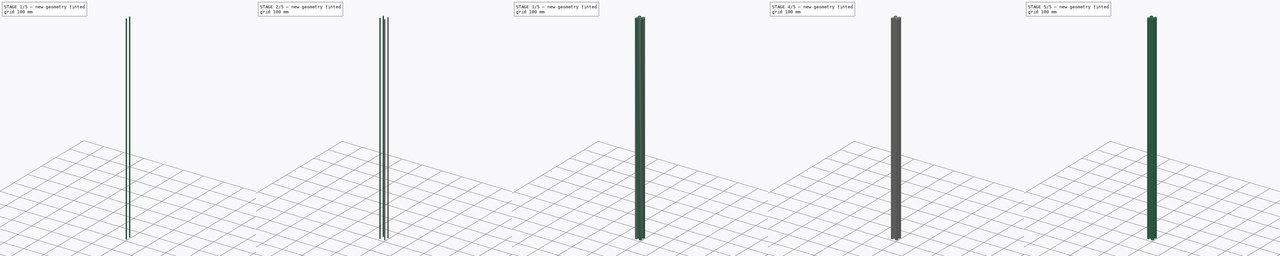
[diagram: build sequence overview — one tinted view per stage of 5, left to right]
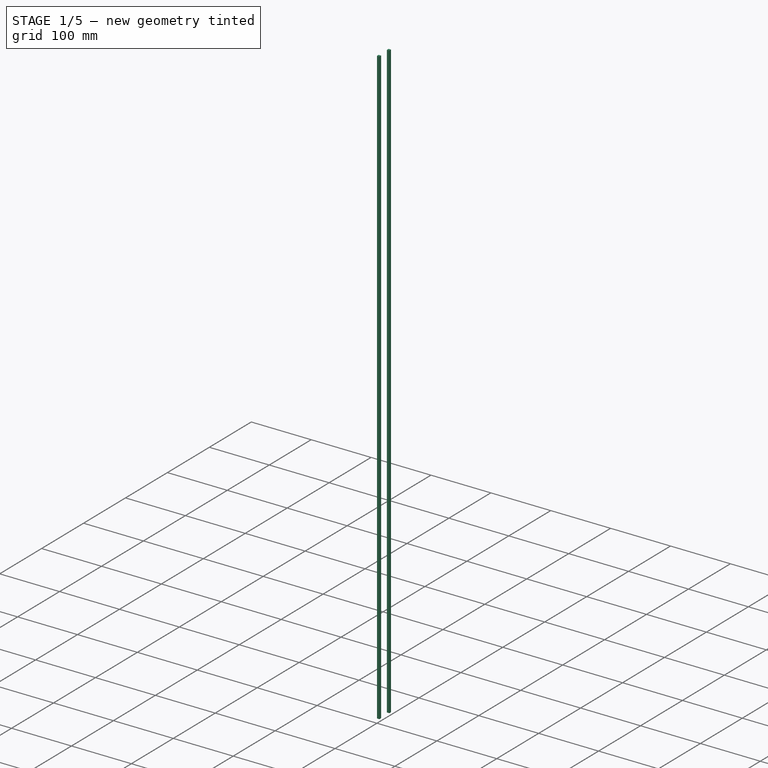
[diagram: stage 1 of 5 — iso view after this stage's code; geometry added in this stage tinted green]
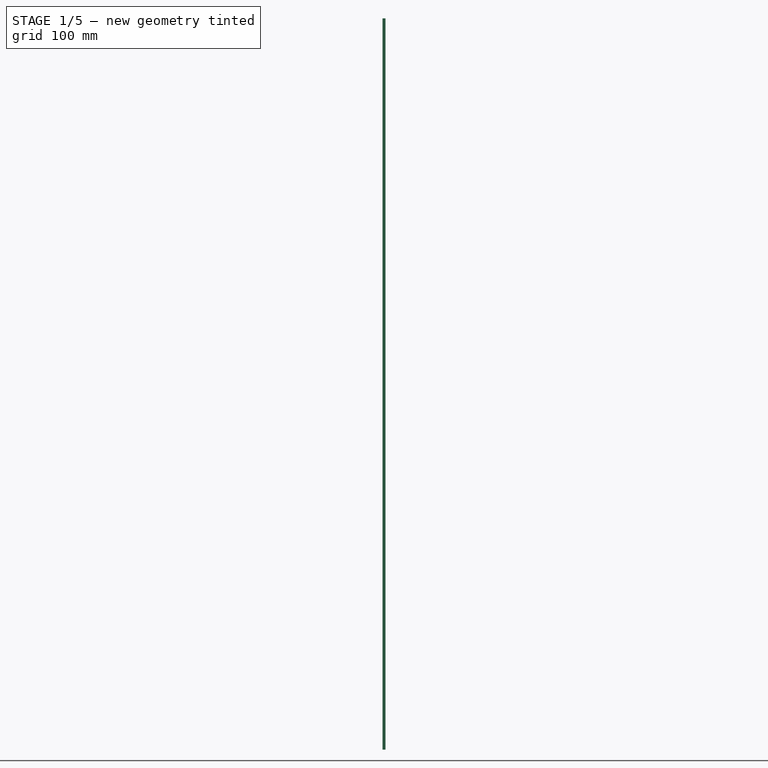
[diagram: stage 1 of 5 — front view after this stage's code; geometry added in this stage tinted green]
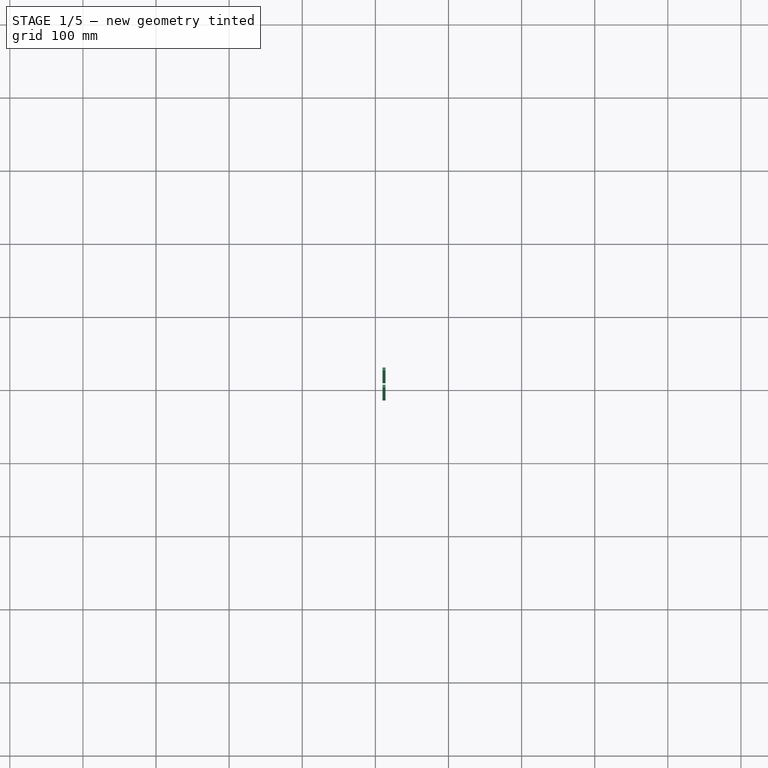
[diagram: stage 1 of 5 — top view after this stage's code; geometry added in this stage tinted green]
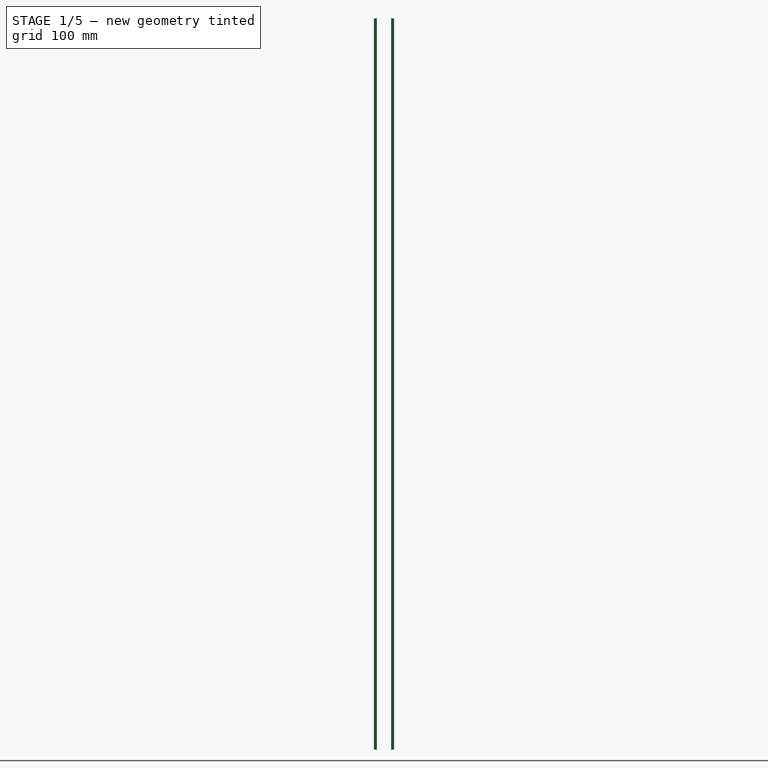
[diagram: stage 1 of 5 — right view after this stage's code; geometry added in this stage tinted green]
FCSTD DOCUMENT  (FreeCAD 0.21R33668 +7 (Git))
Label: TypeB_30x30_8open
License: All rights reserved
LicenseURL: https://en.wikipedia.org/wiki/All_rights_reserved
objects: Part::Box×6, Part::MultiFuse×3, Part::Compound×3, Part::Cut×2, Spreadsheet::Sheet×1, Part::Cylinder×1, Sketcher::SketchObject×1, PartDesign::Pad×1, PartDesign::Body×1, Part::Feature×1, Part::Fillet×1
note: 21 computed .brp shape members not serialized (recipe doc carries the construction recipe); baked Part::Feature solids carry a one-line shape summary decoded from their .brp

FEATURE [Part::Box] Box004  label="Cube004"
  AttacherType = Attacher::AttachEngine3D
  Height = 1000
  Length = 4
  Placement = pos=(9.8,9.8,0) rot=(0,0,1;0rad)
  Width = 4
  expr: Height = <<TypeB_30x30_4open_props>>.extrusion_length
FEATURE [Part::Box] Box005  label="Cube005"
  AttacherType = Attacher::AttachEngine3D
  Height = 1000
  Length = 4
  Placement = pos=(9.8,9.8,0) rot=(0,0,1;0rad)
  Width = 4
  expr: Height = <<TypeB_30x30_4open_props>>.extrusion_length
FEATURE [Part::Compound] Compound002
  Links = -> [Box005]
  Placement = pos=(0,0,0) rot=(0,0,1;4.71239rad)
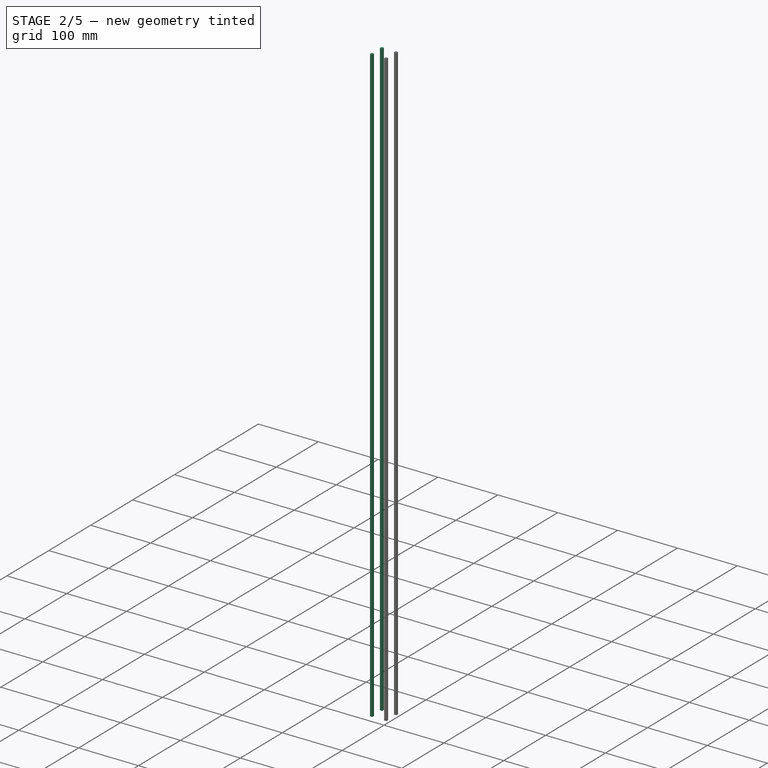
[diagram: stage 2 of 5 — iso view after this stage's code; geometry added in this stage tinted green]
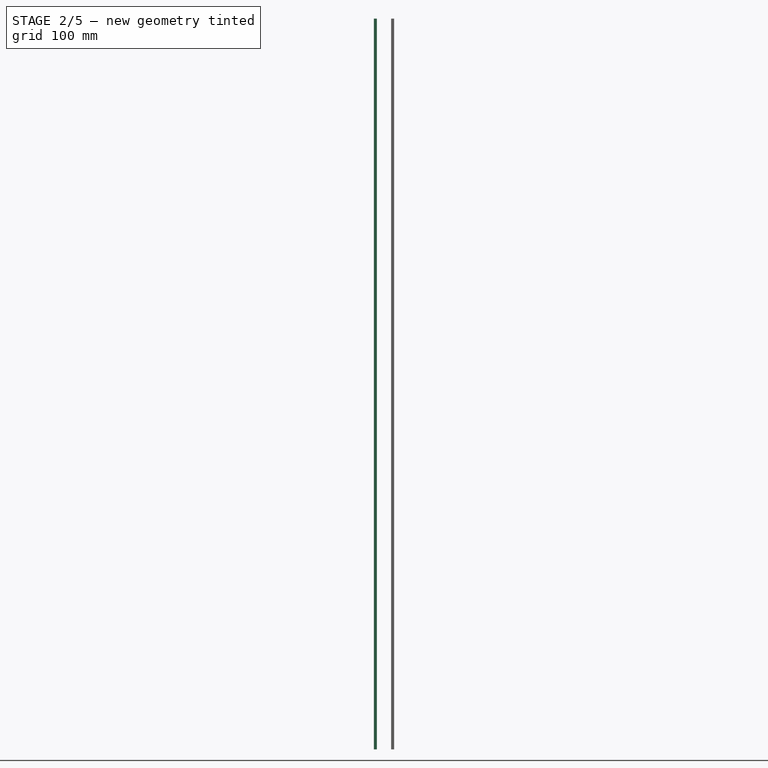
[diagram: stage 2 of 5 — front view after this stage's code; geometry added in this stage tinted green]
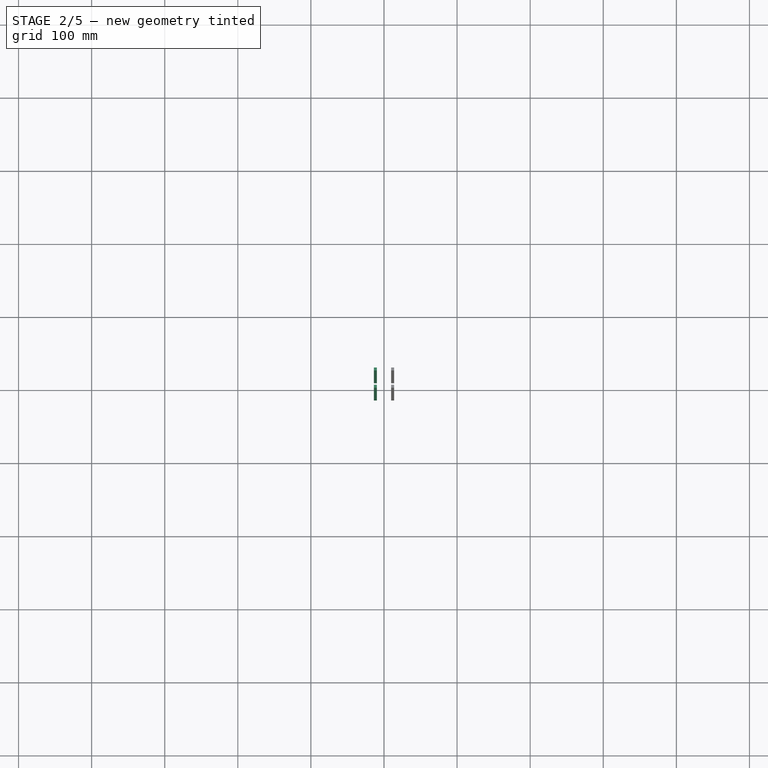
[diagram: stage 2 of 5 — top view after this stage's code; geometry added in this stage tinted green]
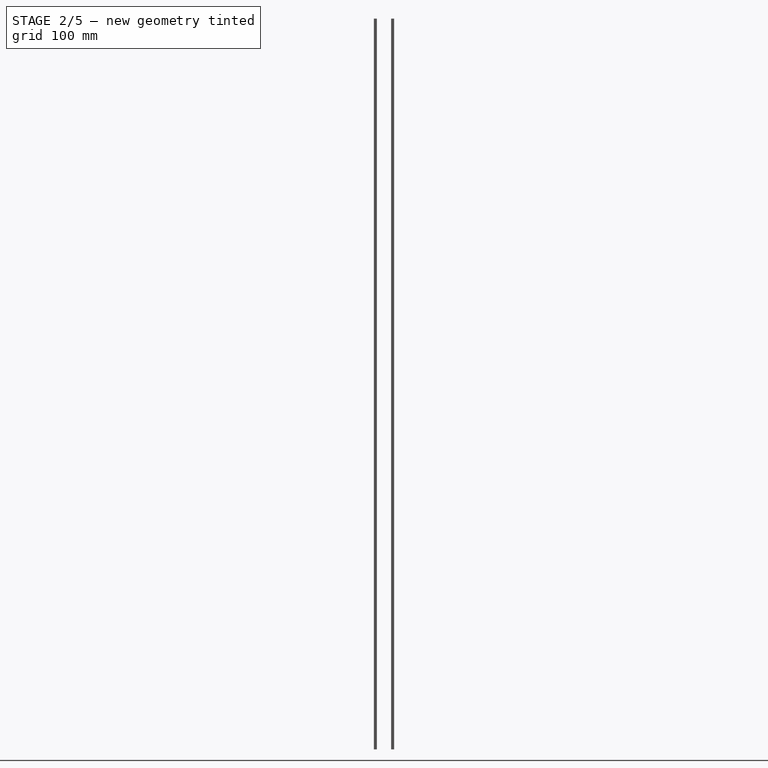
[diagram: stage 2 of 5 — right view after this stage's code; geometry added in this stage tinted green]
FEATURE [Part::Feature] Part__Feature  label="P30_N8_B"
  Placement = pos=(4.7,15,0) rot=(0,0,1;0rad)
  shape: bbox 30 x 30 x 1000 mm, 186 faces (baked)
FEATURE [Part::Box] Box002  label="Cube002"
  AttacherType = Attacher::AttachEngine3D
  Height = 1000
  Length = 4
  Placement = pos=(9.8,9.8,0) rot=(0,0,1;0rad)
  Width = 4
  expr: Height = <<TypeB_30x30_4open_props>>.extrusion_length
FEATURE [Part::Box] Box003  label="Cube003"
  AttacherType = Attacher::AttachEngine3D
  Height = 1000
  Length = 4
  Placement = pos=(9.8,9.8,0) rot=(0,0,1;0rad)
  Width = 4
  expr: Height = <<TypeB_30x30_4open_props>>.extrusion_length
FEATURE [Part::Compound] Compound
  Links = -> [Box003]
  Placement = pos=(0,0,0) rot=(0,0,1;1.5708rad)
FEATURE [Part::Compound] Compound001
  Links = -> [Box004]
  Placement = pos=(0,0,0) rot=(0,0,1;3.14159rad)
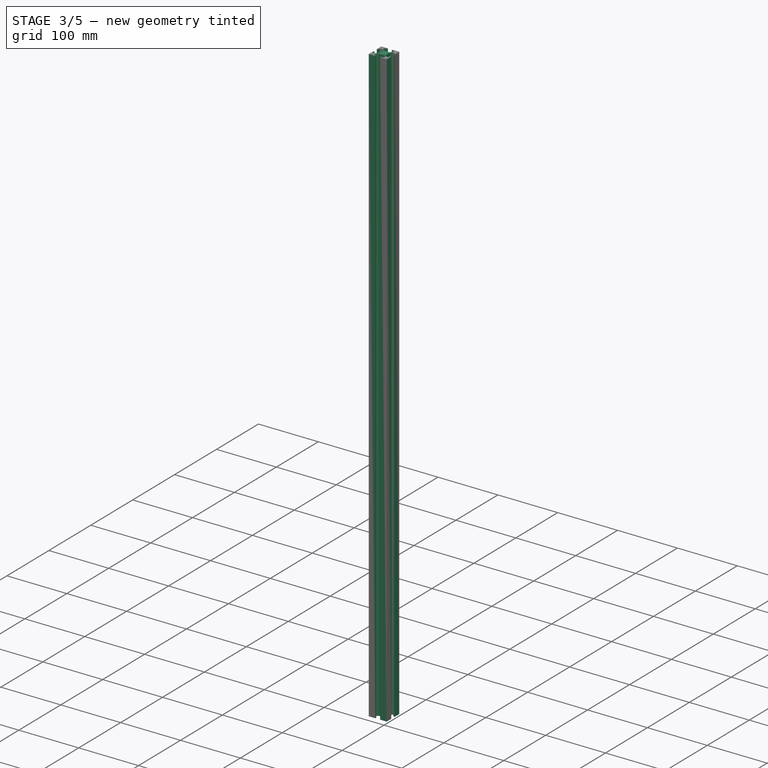
[diagram: stage 3 of 5 — iso view after this stage's code; geometry added in this stage tinted green]
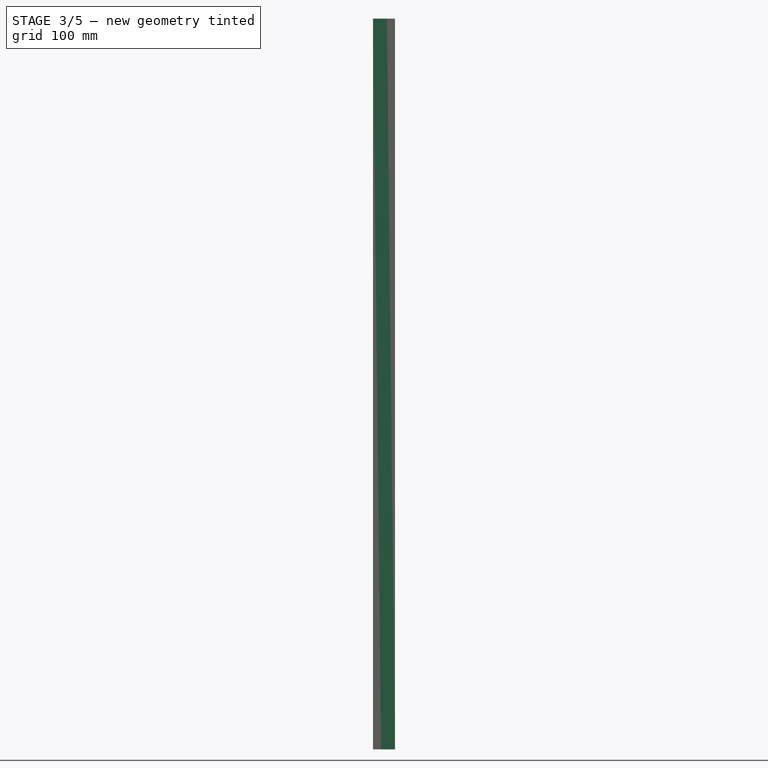
[diagram: stage 3 of 5 — front view after this stage's code; geometry added in this stage tinted green]
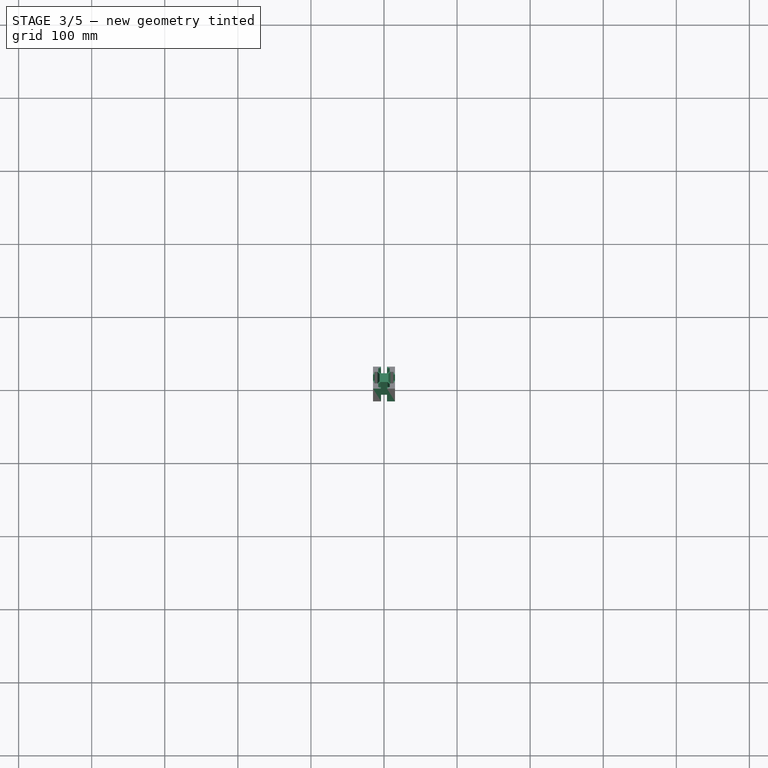
[diagram: stage 3 of 5 — top view after this stage's code; geometry added in this stage tinted green]
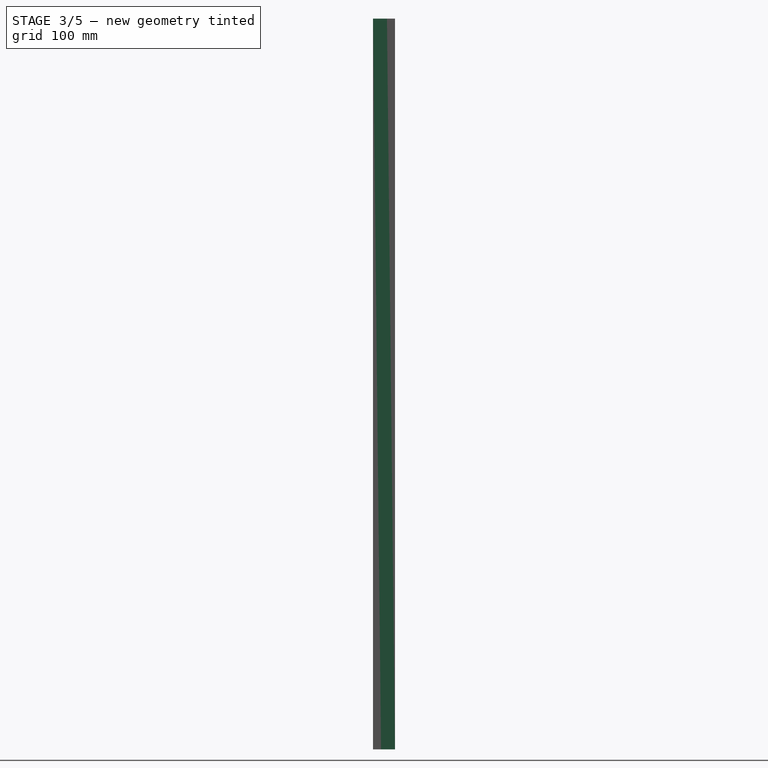
[diagram: stage 3 of 5 — right view after this stage's code; geometry added in this stage tinted green]
FEATURE [Part::Box] Box001  label="Cube001"
  AttacherType = Attacher::AttachEngine3D
  Height = 1000
  Length = 2
  Placement = pos=(4.1,-1,0) rot=(0,0,1;1.5708rad)
  Width = 8.2
  expr: Height = <<TypeB_30x30_4open_props>>.extrusion_length
FEATURE [Sketcher::SketchObject] Sketch
  FullyConstrained = true
  MapMode = 5
  Support = -> [XY_Plane]
  sketch-geometry (46):
    g0: LineSegment StartX=4.05 StartY=-15 StartZ=0 EndX=15 EndY=-15 EndZ=0
    g1: LineSegment StartX=15 StartY=-15 StartZ=0 EndX=15 EndY=-4.05 EndZ=0
    g2: LineSegment StartX=15 StartY=-4.05 StartZ=0 EndX=12.8 EndY=-4.05 EndZ=0
    g3: LineSegment StartX=12.8 StartY=-4.05 StartZ=0 EndX=12.8 EndY=-7.93003 EndZ=0
    g4: LineSegment StartX=12.8 StartY=-7.93003 StartZ=0 EndX=8.91997 EndY=-7.93003 EndZ=0
    g5: LineSegment StartX=8.91997 StartY=-7.93003 StartZ=0 EndX=6 EndY=-5.01005 EndZ=0
    g6: LineSegment StartX=6 StartY=-5.01005 StartZ=0 EndX=6 EndY=5.01005 EndZ=0
    g7: LineSegment StartX=6 StartY=5.01005 StartZ=0 EndX=8.91997 EndY=7.93003 EndZ=0
    g8: LineSegment StartX=8.91997 StartY=7.93003 StartZ=0 EndX=12.8 EndY=7.93003 EndZ=0
    g9: LineSegment StartX=12.8 StartY=7.93003 StartZ=0 EndX=12.8 EndY=7.93003 EndZ=0
    g10: LineSegment StartX=12.8 StartY=7.93003 StartZ=0 EndX=12.8 EndY=4.05 EndZ=0
    g11: LineSegment StartX=12.8 StartY=4.05 StartZ=0 EndX=15 EndY=4.05 EndZ=0
    g12: LineSegment StartX=15 StartY=4.05 StartZ=0 EndX=15 EndY=15 EndZ=0
    g13: LineSegment StartX=15 StartY=15 StartZ=0 EndX=4.05 EndY=15 EndZ=0
    g14: LineSegment StartX=4.05 StartY=15 StartZ=0 EndX=4.05 EndY=12.8 EndZ=0
    g15: LineSegment StartX=4.05 StartY=12.8 StartZ=0 EndX=7.93003 EndY=12.8 EndZ=0
    g16: LineSegment StartX=7.93003 StartY=12.8 StartZ=0 EndX=7.93003 EndY=8.91997 EndZ=0
    g17: LineSegment StartX=7.93003 StartY=8.91997 StartZ=0 EndX=7.93003 EndY=8.91997 EndZ=0
    g18: LineSegment StartX=7.93003 StartY=8.91997 StartZ=0 EndX=5.01005 EndY=6 EndZ=0
    g19: LineSegment StartX=5.01005 StartY=6 StartZ=0 EndX=-5.01005 EndY=6 EndZ=0
    g20: LineSegment StartX=-5.01005 StartY=6 StartZ=0 EndX=-7.93003 EndY=8.91997 EndZ=0
    g21: LineSegment StartX=-7.93003 StartY=8.91997 StartZ=0 EndX=-7.93003 EndY=12.8 EndZ=0
    g22: LineSegment StartX=-7.93003 StartY=12.8 StartZ=0 EndX=-4.05 EndY=12.8 EndZ=0
    g23: LineSegment StartX=-4.05 StartY=12.8 StartZ=0 EndX=-4.05 EndY=15 EndZ=0
    g24: LineSegment StartX=-4.05 StartY=15 StartZ=0 EndX=-15 EndY=15 EndZ=0
    g25: LineSegment StartX=-15 StartY=15 StartZ=0 EndX=-15 EndY=4.05 EndZ=0
    g26: LineSegment StartX=-15 StartY=4.05 StartZ=0 EndX=-12.8 EndY=4.05 EndZ=0
    g27: LineSegment StartX=-12.8 StartY=4.05 StartZ=0 EndX=-12.8 EndY=7.93003 EndZ=0
    g28: LineSegment StartX=-12.8 StartY=7.93003 StartZ=0 EndX=-8.91997 EndY=7.93003 EndZ=0
    g29: LineSegment StartX=-8.91997 StartY=7.93003 StartZ=0 EndX=-6 EndY=5.01005 EndZ=0
    g30: LineSegment StartX=-6 StartY=5.01005 StartZ=0 EndX=-6 EndY=-5.01005 EndZ=0
    g31: LineSegment StartX=-6 StartY=-5.01005 StartZ=0 EndX=-8.91997 EndY=-7.93003 EndZ=0
    g32: LineSegment StartX=-8.91997 StartY=-7.93003 StartZ=0 EndX=-12.8 EndY=-7.93003 EndZ=0
    g33: LineSegment StartX=-12.8 StartY=-7.93003 StartZ=0 EndX=-12.8 EndY=-4.05 EndZ=0
    g34: LineSegment StartX=-12.8 StartY=-4.05 StartZ=0 EndX=-15 EndY=-4.05 EndZ=0
    g35: LineSegment StartX=-15 StartY=-15 StartZ=0 EndX=-4.05 EndY=-15 EndZ=0
    g36: LineSegment StartX=-4.05 StartY=-15 StartZ=0 EndX=-4.05 EndY=-12.8 EndZ=0
    g37: LineSegment StartX=-4.05 StartY=-12.8 StartZ=0 EndX=-7.93003 EndY=-12.8 EndZ=0
    g38: LineSegment StartX=-7.93003 StartY=-12.8 StartZ=0 EndX=-7.93003 EndY=-8.91997 EndZ=0
    g39: LineSegment StartX=-7.93003 StartY=-8.91997 StartZ=0 EndX=-5.01005 EndY=-6 EndZ=0
    g40: LineSegment StartX=-5.01005 StartY=-6 StartZ=0 EndX=5.01005 EndY=-6 EndZ=0
    g41: LineSegment StartX=5.01005 StartY=-6 StartZ=0 EndX=7.93003 EndY=-8.91997 EndZ=0
    g42: LineSegment StartX=7.93003 StartY=-8.91997 StartZ=0 EndX=7.93003 EndY=-12.8 EndZ=0
    g43: LineSegment StartX=7.93003 StartY=-12.8 StartZ=0 EndX=4.05 EndY=-12.8 EndZ=0
    g44: LineSegment StartX=4.05 StartY=-12.8 StartZ=0 EndX=4.05 EndY=-15 EndZ=0
    g45: LineSegment StartX=-15 StartY=-15 StartZ=0 EndX=-15 EndY=-4.05 EndZ=0
  constraints (138):
    c: Horizontal(g0)
    c: Coincident(g0,g1)
    c: Vertical(g1)
    c: Coincident(g1,g2)
    c: Horizontal(g2)
    c: Coincident(g2,g3)
    c: Vertical(g3)
    c: Coincident(g3,g4)
    c: Horizontal(g4)
    c: Coincident(g4,g5)
    c: Coincident(g5,g6)
    c: Vertical(g6)
    c: Coincident(g6,g7)
    c: Coincident(g7,g8)
    c: Horizontal(g8)
    c: Coincident(g8,g9)
    c: Vertical(g9)
    c: Coincident(g9,g10)
    c: Vertical(g10)
    c: Coincident(g10,g11)
    c: Horizontal(g11)
    c: Coincident(g11,g12)
    c: Vertical(g12)
    c: Coincident(g12,g13)
    c: Horizontal(g13)
    c: Coincident(g13,g14)
    c: Vertical(g14)
    c: Coincident(g14,g15)
    c: Horizontal(g15)
    c: Coincident(g15,g16)
    c: Vertical(g16)
    c: Coincident(g16,g17)
    c: Horizontal(g17)
    c: Coincident(g17,g18)
    c: Coincident(g18,g19)
    c: Horizontal(g19)
    c: Coincident(g19,g20)
    c: Coincident(g20,g21)
    c: Vertical(g21)
    c: Coincident(g21,g22)
    c: Horizontal(g22)
    c: Coincident(g22,g23)
    c: Vertical(g23)
    c: Coincident(g23,g24)
    c: Horizontal(g24)
    c: Coincident(g24,g25)
    c: Vertical(g25)
    c: Coincident(g25,g26)
    c: Horizontal(g26)
    c: Coincident(g26,g27)
    c: Vertical(g27)
    c: Coincident(g27,g28)
    c: Horizontal(g28)
    c: Coincident(g28,g29)
    c: Coincident(g29,g30)
    c: Vertical(g30)
    c: Coincident(g30,g31)
    c: Coincident(g31,g32)
    c: Horizontal(g32)
    c: Coincident(g32,g33)
    c: Vertical(g33)
    c: Coincident(g33,g34)
    c: Horizontal(g34)
    c: Horizontal(g35)
    c: Coincident(g35,g36)
    c: Vertical(g36)
    c: Coincident(g36,g37)
    c: Horizontal(g37)
    c: Coincident(g37,g38)
    c: Vertical(g38)
    c: Coincident(g38,g39)
    c: Coincident(g39,g40)
    c: Horizontal(g40)
    c: Coincident(g40,g41)
    c: Coincident(g41,g42)
    c: Vertical(g42)
    c: Coincident(g42,g43)
    c: Horizontal(g43)
    c: Coincident(g43,g44)
    c: Coincident(g44,g0)
    c: Vertical(g44)
    c: Equal(g40,g6)
    c: Equal(g6,g19)
    c: Equal(g19,g30)
    c: Equal(g33,g32)
    c: Equal(g32,g38)
    c: Equal(g38,g37)
    c: Equal(g37,g43)
    c: Equal(g43,g42)
    c: Equal(g42,g4)
    c: Equal(g4,g3)
    c: Equal(g3,g10)
    c: Equal(g10,g8)
    c: Equal(g8,g16)
    c: Equal(g16,g15)
    c: Equal(g15,g22)
    c: Equal(g22,g21)
    c: Equal(g21,g28)
    c: Equal(g28,g27)
    c: Coincident(g45,g35)
    c: Coincident(g45,g34)
    c: Vertical(g45)
    c: Equal(g35,g45)
    c: Equal(g45,g0)
    c: Equal(g0,g1)
    c: Equal(g1,g12)
    c: Equal(g12,g13)
    c: Equal(g13,g24)
    c: Equal(g24,g25)
    c: Equal(g29,g20)
    c: Equal(g20,g18)
    c: Equal(g18,g7)
    c: Equal(g7,g5)
    c: Equal(g5,g41)
    c: Equal(g41,g39)
    c: Equal(g39,g31)
    c: DistanceX(g24,g12) = 30
    c: DistanceX(g35,g0) = 30
    c: DistanceX(g23,g13) = 8.1
    c: DistanceY(g34,g25) = 8.1
    c: DistanceY(g-1,g12) = 15
    c: DistanceY(g14,g14) = 2.2
    c: DistanceY(g-1,g24) = 15
    c: DistanceX(g35,g-1) = 15
    c: DistanceX(g26,g26) = 2.2
    c: DistanceX(g34,g34) = 2.2
    c: DistanceX(g24,g-1) = 15
    c: DistanceY(g0,g-1) = 15
    c: DistanceX(g2,g2) = 2.2
    c: DistanceX(g11,g11) = 2.2
    c: DistanceY(g44,g44) = 2.2
    c: DistanceY(g36,g36) = 2.2
    c: DistanceY(g23,g23) = 2.2
    c: Parallel(g31,g39)
    c: Parallel(g41,g5)
    c: Parallel(g7,g18)
    c: DistanceX(g5,g1) = 9
    c: Distance(g29,g19) = 1.4
FEATURE [PartDesign::Pad] Pad
  Direction = (0,0,1)
  Length = 1000
  Length2 = 100
  Profile = -> Sketch
  Type = 0
  expr: Length = <<TypeB_30x30_4open_props>>.extrusion_length
FEATURE [Part::MultiFuse] Fusion002
  Shapes = -> [Compound002,Compound,Compound001,Box002]
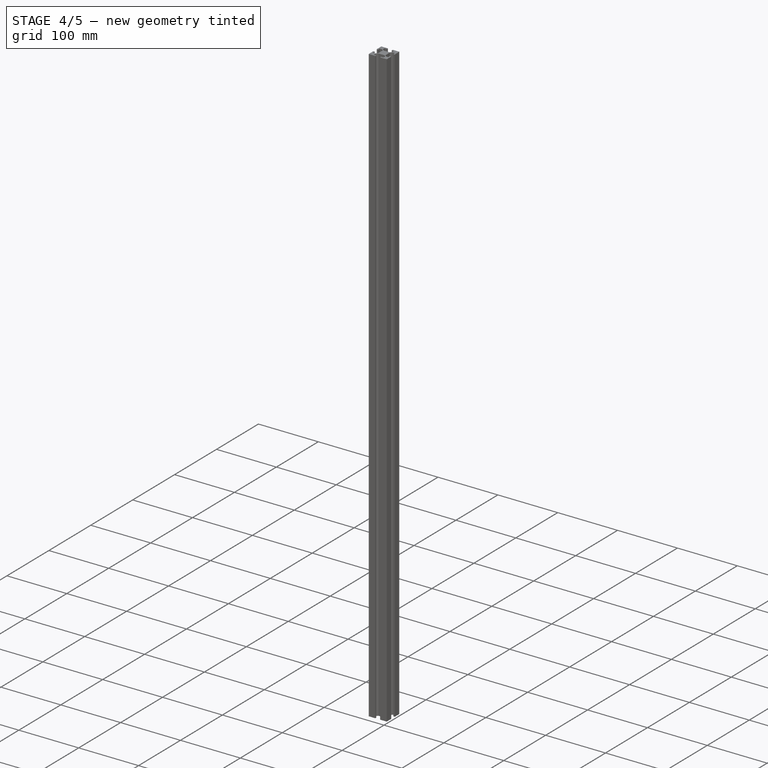
[diagram: stage 4 of 5 — iso view after this stage's code; geometry added in this stage tinted green]
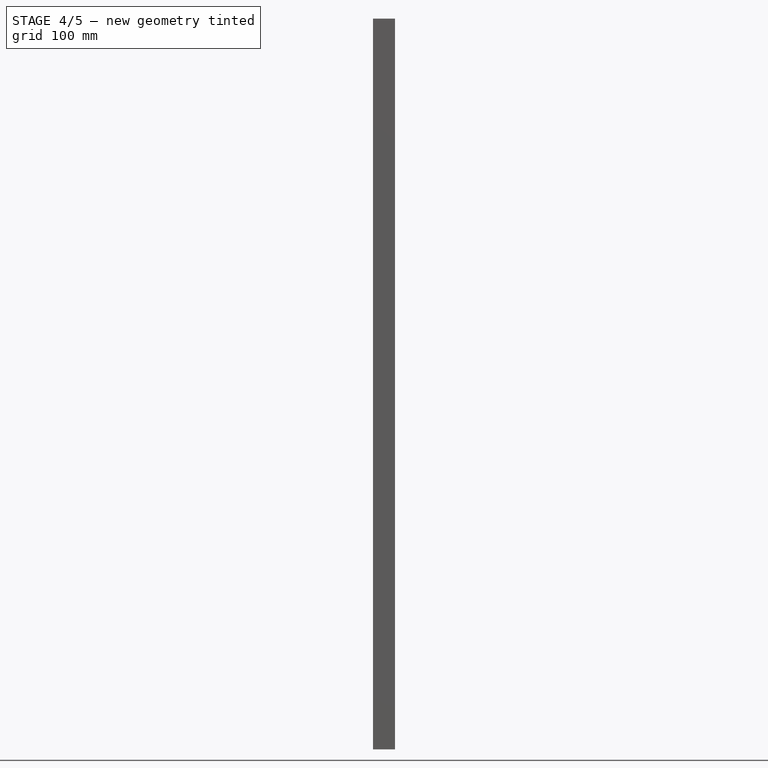
[diagram: stage 4 of 5 — front view after this stage's code; geometry added in this stage tinted green]
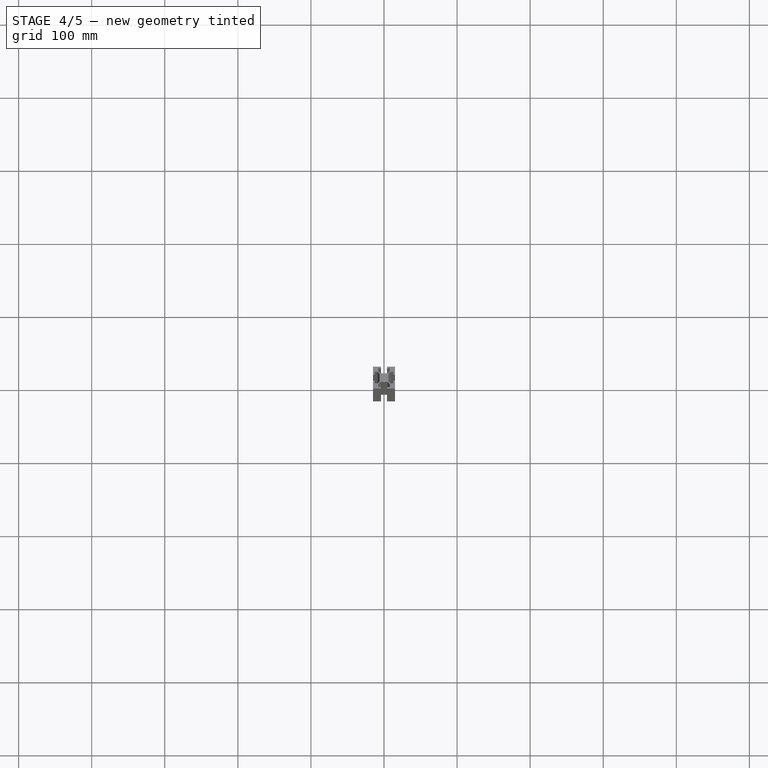
[diagram: stage 4 of 5 — top view after this stage's code; geometry added in this stage tinted green]
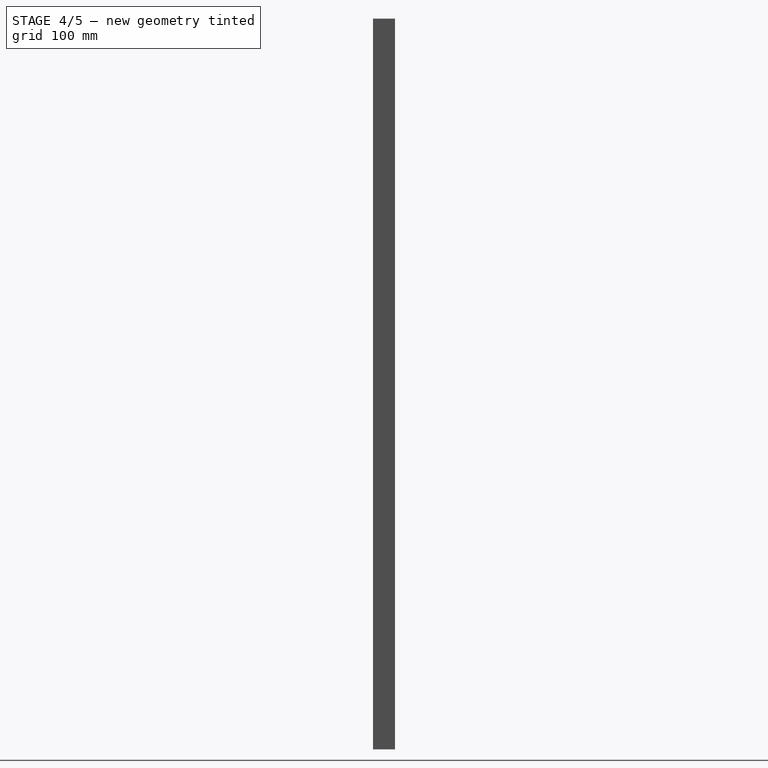
[diagram: stage 4 of 5 — right view after this stage's code; geometry added in this stage tinted green]
FEATURE [Spreadsheet::Sheet] Spreadsheet  label="TypeB_30x30_4open_props"
  cells = A1='30 x 30mm Type B extrusion, open all sides; A2='Extrusion length; B2(extrusion_length)=1000
FEATURE [Part::Box] Box  label="Cube"
  AttacherType = Attacher::AttachEngine3D
  Height = 1000
  Length = 2
  Placement = pos=(-1,-4.1,0) rot=(0,0,1;0rad)
  Width = 8.2
  expr: Height = <<TypeB_30x30_4open_props>>.extrusion_length
FEATURE [Part::Cylinder] Cylinder
  Angle = 360
  AttacherType = Attacher::AttachEngine3D
  FirstAngle = 0
  Height = 1000
  Radius = 3.65
  SecondAngle = 0
  expr: Height = <<TypeB_30x30_4open_props>>.extrusion_length
FEATURE [Part::MultiFuse] Fusion
  Placement = pos=(0,0,0) rot=(0,0,1;0.785398rad)
  Shapes = -> [Box001,Box]
FEATURE [Part::MultiFuse] Fusion001
  Shapes = -> [Fusion,Cylinder]
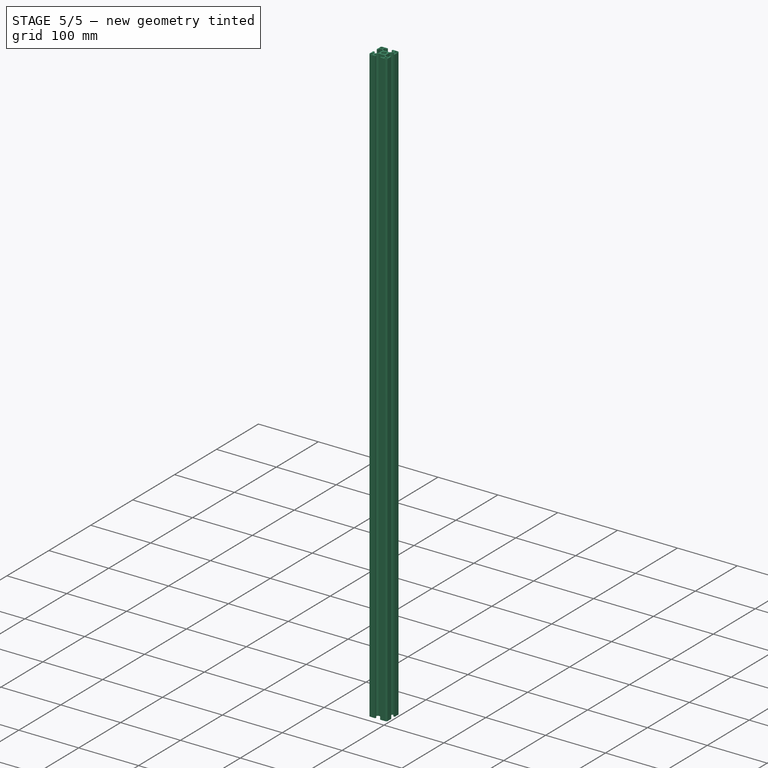
[diagram: stage 5 of 5 — iso view after this stage's code; geometry added in this stage tinted green]
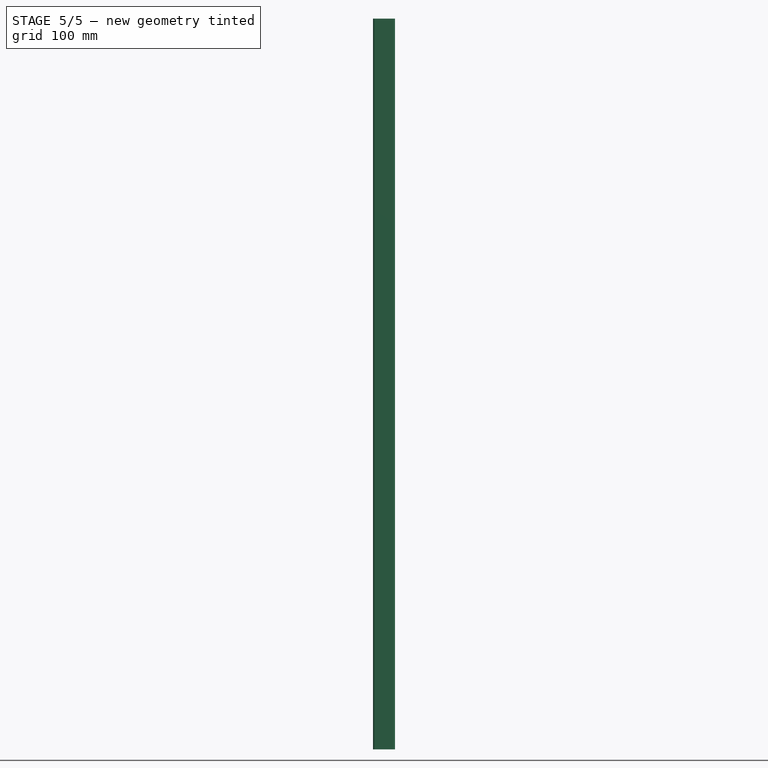
[diagram: stage 5 of 5 — front view after this stage's code; geometry added in this stage tinted green]
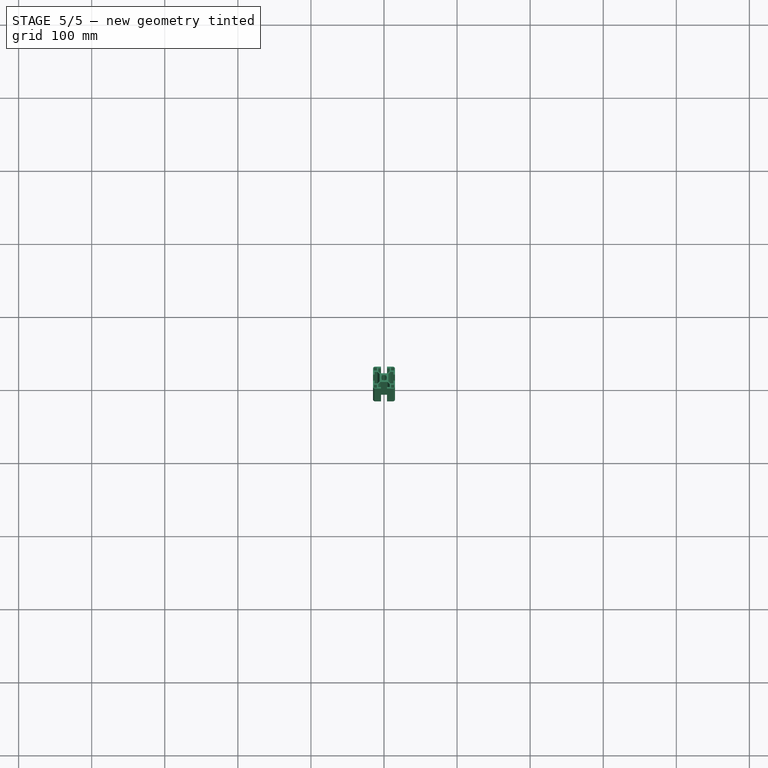
[diagram: stage 5 of 5 — top view after this stage's code; geometry added in this stage tinted green]
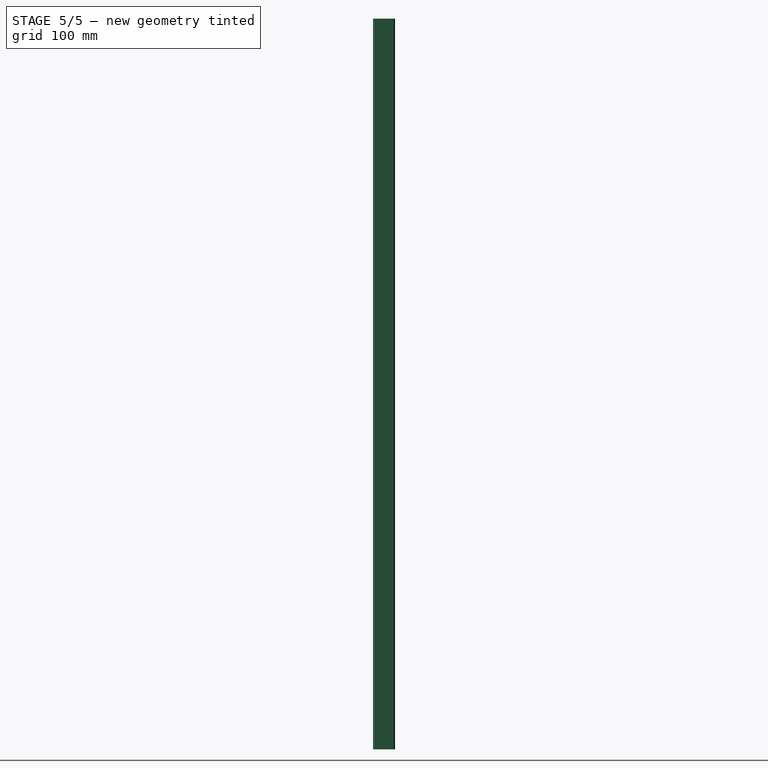
[diagram: stage 5 of 5 — right view after this stage's code; geometry added in this stage tinted green]
FEATURE [PartDesign::Body] Body
  Group = -> [Sketch,Pad]
  Origin = -> Origin
  Tip = -> Pad
FEATURE [Part::Cut] Cut
  Base = -> Body
  Tool = -> Fusion001
FEATURE [Part::Cut] Cut001
  Base = -> Cut
  Tool = -> Fusion002
FEATURE [Part::Fillet] Fillet  label="TypeB_30x30_4open"
  Base = -> Cut001
  Edges = 4 edges r=2.5: [Edge1,Edge180,Edge181,Edge202]
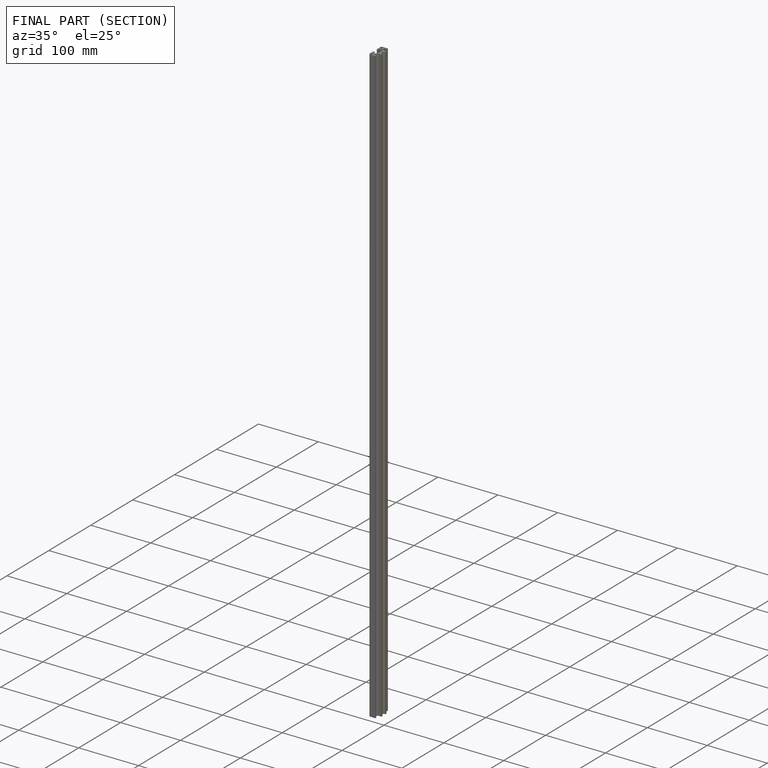
[diagram: finished part — half-section view (interior)]
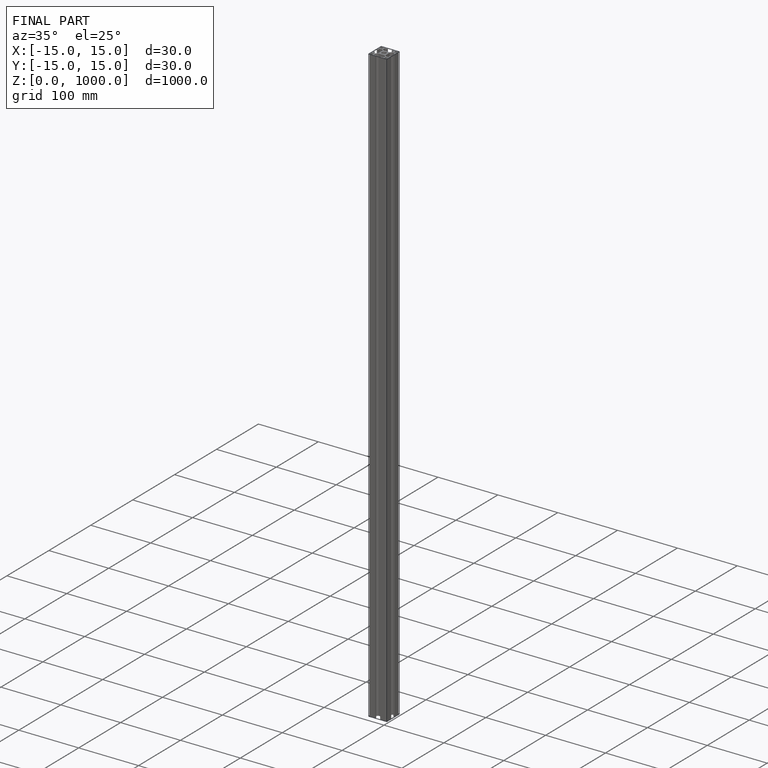
[diagram: finished part — iso view with bounding-box wireframe]
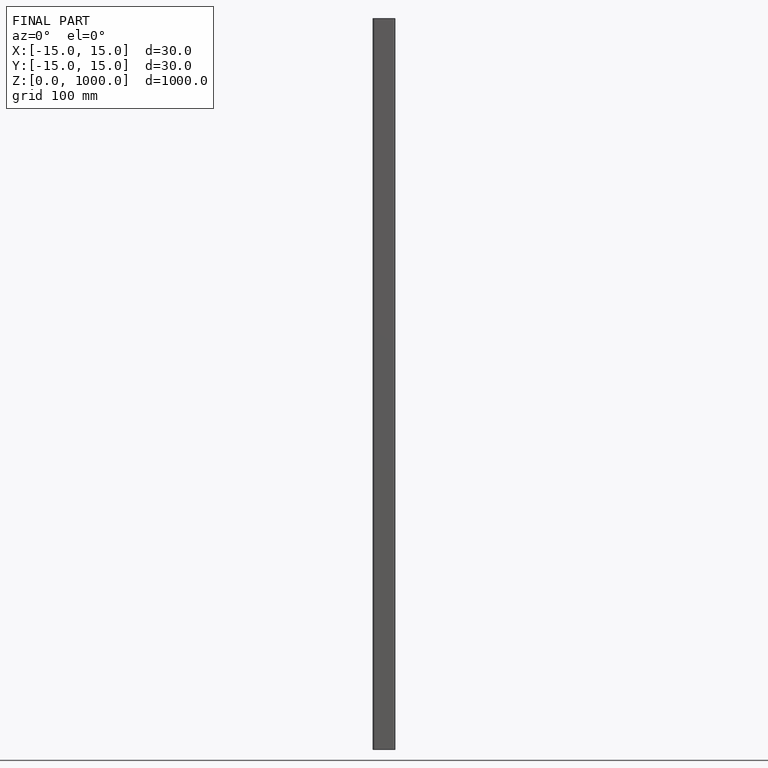
[diagram: finished part — front view with bounding-box wireframe]
